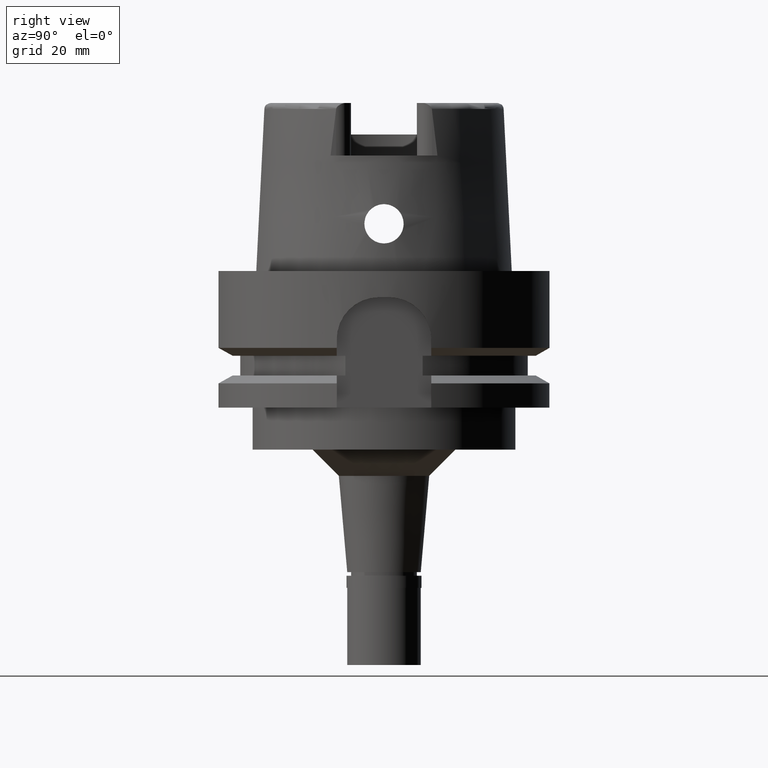
[diagram: clean part render]
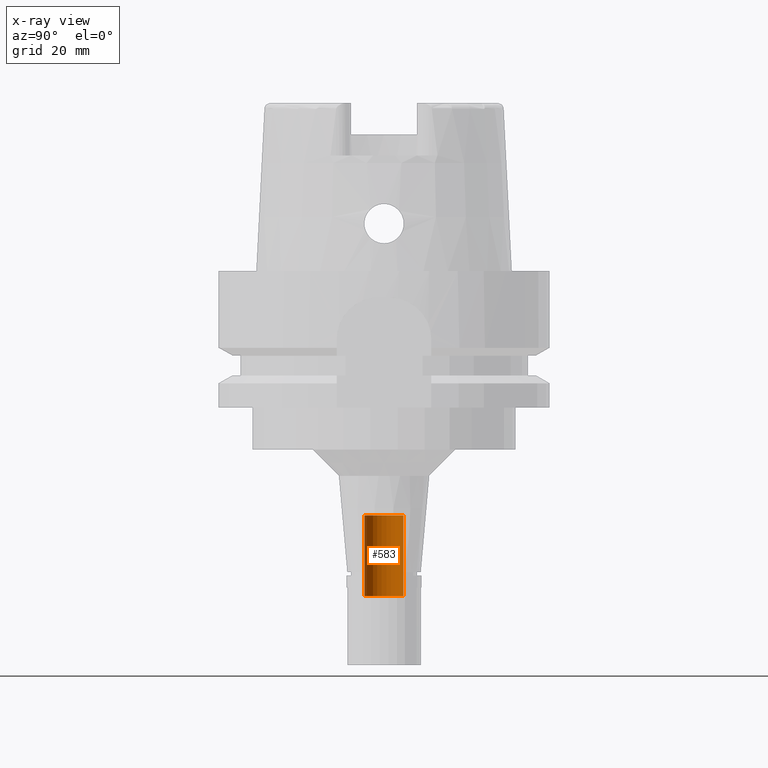
[diagram: x-ray — body ghosted, one internal face saturated and labeled with its STEP entity id]
A machine part, right view, then the same camera in x-ray: the body is ghosted and one INTERNAL B-rep face — a face not visible from any outside direction — is saturated and labeled: STEP entity #583.
In plain terms, the highlighted cylindrical surface (edge-blend (fillet) strip) has radius 3.7 mm, axis along (0, 0, -1).
Its self-contained STEP definition (entity closure, byte-faithful):
#583 = ADVANCED_FACE ( 'NONE', ( #5379 ), #1428, .F. ) ;
#1133 = LINE ( 'NONE', #4575, #2609 ) ;
#1284 = DIRECTION ( 'NONE',  ( 0.0000000000000000000, 0.0000000000000000000, -1.000000000000000000 ) ) ;
#1428 = CYLINDRICAL_SURFACE ( 'NONE', #3012, 3.700000000000000178 ) ;
#1564 = DIRECTION ( 'NONE',  ( 0.0000000000000000000, 1.000000000000000000, 0.0000000000000000000 ) ) ;
#1710 = EDGE_CURVE ( 'NONE', #4209, #3953, #4005, .T. ) ;
#1800 = CIRCLE ( 'NONE', #3877, 3.700000000000000178 ) ;
#1816 = DIRECTION ( 'NONE',  ( 0.0000000000000000000, -1.000000000000000000, 0.0000000000000000000 ) ) ;
#1929 = VERTEX_POINT ( 'NONE', #4230 ) ;
#2010 = AXIS2_PLACEMENT_3D ( 'NONE', #2446, #2844, #1564 ) ;
#2071 = VECTOR ( 'NONE', #2464, 1000.000000000000000 ) ;
#2096 = CARTESIAN_POINT ( 'NONE',  ( 0.0000000000000000000, 0.0000000000000000000, -61.85595815778999906 ) ) ;
#2229 = DIRECTION ( 'NONE',  ( 0.0000000000000000000, 0.0000000000000000000, -1.000000000000000000 ) ) ;
#2263 = CARTESIAN_POINT ( 'NONE',  ( 0.0000000000000000000, 3.700000000000000178, -46.50000000000000000 ) ) ;
#2357 = EDGE_CURVE ( 'NONE', #1929, #3953, #5471, .T. ) ;
#2446 = CARTESIAN_POINT ( 'NONE',  ( 0.0000000000000000000, 0.0000000000000000000, -46.50000000000000000 ) ) ;
#2464 = DIRECTION ( 'NONE',  ( 0.0000000000000000000, -1.538526331033999949E-14, 1.000000000000000000 ) ) ;
#2541 = CARTESIAN_POINT ( 'NONE',  ( 0.0000000000000000000, 3.700000000000000178, -61.85595815778999906 ) ) ;
#2609 = VECTOR ( 'NONE', #2860, 1000.000000000000000 ) ;
#2844 = DIRECTION ( 'NONE',  ( 0.0000000000000000000, 0.0000000000000000000, 1.000000000000000000 ) ) ;
#2860 = DIRECTION ( 'NONE',  ( 0.0000000000000000000, 1.538526331033999949E-14, 1.000000000000000000 ) ) ;
#2868 = EDGE_CURVE ( 'NONE', #1929, #4748, #1800, .T. ) ;
#3012 = AXIS2_PLACEMENT_3D ( 'NONE', #3138, #2229, #1816 ) ;
#3045 = ORIENTED_EDGE ( 'NONE', *, *, #2357, .F. ) ;
#3058 = CARTESIAN_POINT ( 'NONE',  ( 0.0000000000000000000, -3.700000000000000178, -46.50000000000000000 ) ) ;
#3138 = CARTESIAN_POINT ( 'NONE',  ( 0.0000000000000000000, 0.0000000000000000000, 37.15000000000000568 ) ) ;
#3828 = CARTESIAN_POINT ( 'NONE',  ( 0.0000000000000000000, -3.700000000000000178, -61.85595815778999906 ) ) ;
#3877 = AXIS2_PLACEMENT_3D ( 'NONE', #2096, #1284, #4692 ) ;
#3953 = VERTEX_POINT ( 'NONE', #3058 ) ;
#3986 = EDGE_CURVE ( 'NONE', #4748, #4209, #1133, .T. ) ;
#4005 = CIRCLE ( 'NONE', #2010, 3.700000000000000178 ) ;
#4007 = EDGE_LOOP ( 'NONE', ( #4599, #3045, #5210, #5349 ) ) ;
#4209 = VERTEX_POINT ( 'NONE', #2263 ) ;
#4230 = CARTESIAN_POINT ( 'NONE',  ( 0.0000000000000000000, -3.700000000000000178, -61.85595815778999906 ) ) ;
#4575 = CARTESIAN_POINT ( 'NONE',  ( 0.0000000000000000000, 3.700000000000000178, -61.85595815778999906 ) ) ;
#4599 = ORIENTED_EDGE ( 'NONE', *, *, #1710, .T. ) ;
#4692 = DIRECTION ( 'NONE',  ( 0.0000000000000000000, -1.000000000000000000, 0.0000000000000000000 ) ) ;
#4748 = VERTEX_POINT ( 'NONE', #2541 ) ;
#5210 = ORIENTED_EDGE ( 'NONE', *, *, #2868, .T. ) ;
#5349 = ORIENTED_EDGE ( 'NONE', *, *, #3986, .T. ) ;
#5379 = FACE_OUTER_BOUND ( 'NONE', #4007, .T. ) ;
#5471 = LINE ( 'NONE', #3828, #2071 ) ;